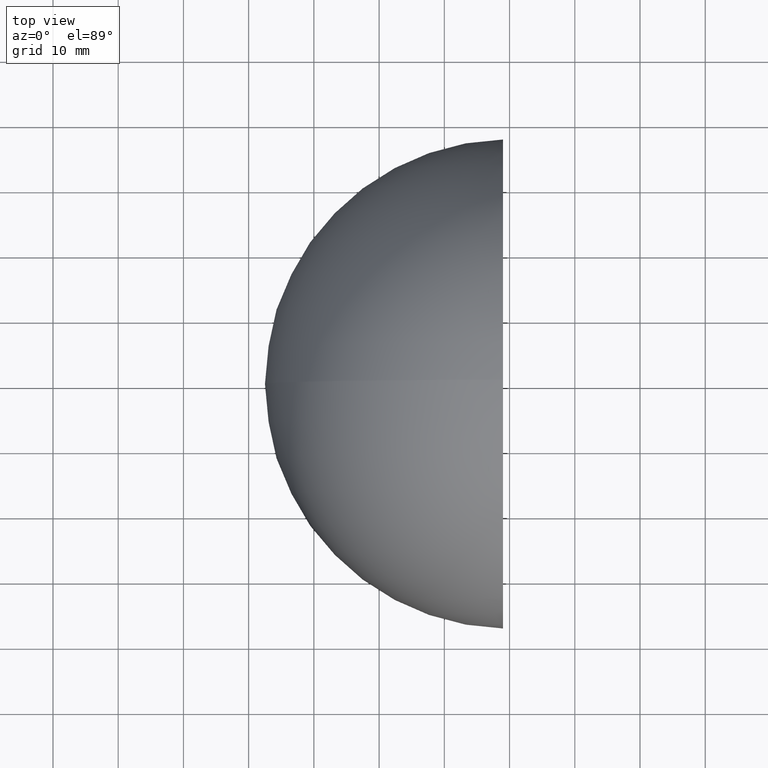
[diagram: clean part render]
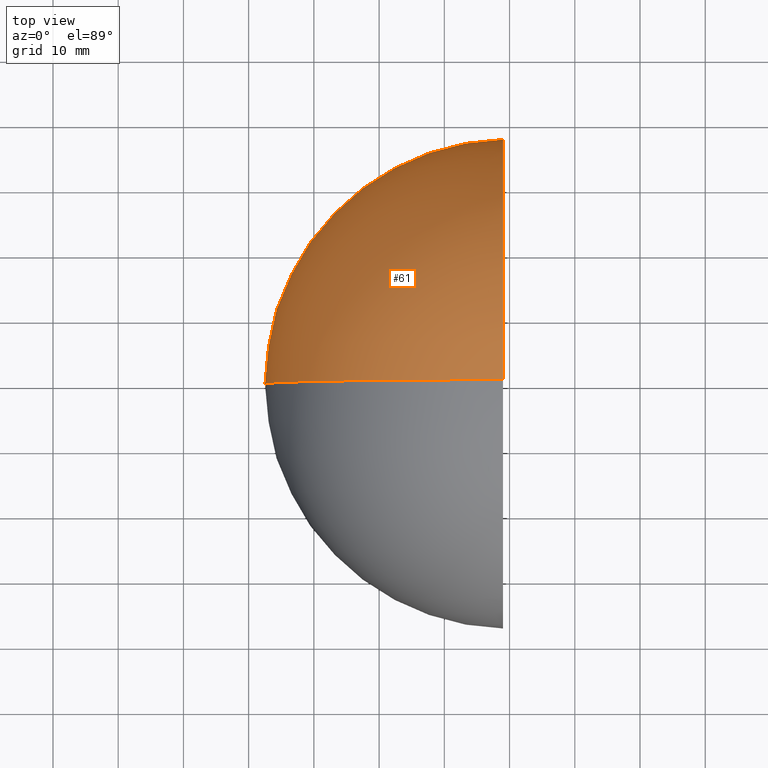
[diagram: same view with one face highlighted and labeled with its STEP entity id]
A machine part, top view. The second image highlights one B-rep face of the part: STEP entity #61.
In plain terms, the highlighted spherical surface has radius 37.5 mm.
Its self-contained STEP definition (entity closure, byte-faithful):
#3 = EDGE_LOOP ( 'NONE', ( #59, #113, #107 ) ) ;
#4 = AXIS2_PLACEMENT_3D ( 'NONE', #68, #30, #21 ) ;
#7 = CIRCLE ( 'NONE', #42, 37.48666429545312400 ) ;
#11 = EDGE_CURVE ( 'NONE', #94, #35, #33, .T. ) ;
#21 = DIRECTION ( 'NONE',  ( 0.0000000000000000000, -1.224646799147353200E-016, -1.000000000000000000 ) ) ;
#25 = CARTESIAN_POINT ( 'NONE',  ( -37.50000000000000000, 0.0000000000000000000, 2.296212748401287200E-015 ) ) ;
#28 = AXIS2_PLACEMENT_3D ( 'NONE', #46, #105, #160 ) ;
#30 = DIRECTION ( 'NONE',  ( 0.0000000000000000000, -1.000000000000000000, 1.224646799147353200E-016 ) ) ;
#33 = CIRCLE ( 'NONE', #43, 37.50000000000000000 ) ;
#35 = VERTEX_POINT ( 'NONE', #95 ) ;
#36 = EDGE_CURVE ( 'NONE', #94, #97, #142, .T. ) ;
#42 = AXIS2_PLACEMENT_3D ( 'NONE', #51, #53, #117 ) ;
#43 = AXIS2_PLACEMENT_3D ( 'NONE', #164, #79, #141 ) ;
#46 = CARTESIAN_POINT ( 'NONE',  ( 0.0000000000000000000, 0.0000000000000000000, 0.0000000000000000000 ) ) ;
#51 = CARTESIAN_POINT ( 'NONE',  ( -0.9999999999999940000, 0.0000000000000000000, 0.0000000000000000000 ) ) ;
#53 = DIRECTION ( 'NONE',  ( 1.000000000000000000, -0.0000000000000000000, -0.0000000000000000000 ) ) ;
#59 = ORIENTED_EDGE ( 'NONE', *, *, #36, .F. ) ;
#61 = ADVANCED_FACE ( 'NONE', ( #78 ), #112, .T. ) ;
#65 = EDGE_CURVE ( 'NONE', #97, #35, #7, .T. ) ;
#68 = CARTESIAN_POINT ( 'NONE',  ( 0.0000000000000000000, 0.0000000000000000000, 0.0000000000000000000 ) ) ;
#78 = FACE_OUTER_BOUND ( 'NONE', #3, .T. ) ;
#79 = DIRECTION ( 'NONE',  ( 0.0000000000000000000, 1.000000000000000000, 0.0000000000000000000 ) ) ;
#94 = VERTEX_POINT ( 'NONE', #25 ) ;
#95 = CARTESIAN_POINT ( 'NONE',  ( -0.9999999999999940000, 0.0000000000000000000, 37.48666429545312400 ) ) ;
#97 = VERTEX_POINT ( 'NONE', #150 ) ;
#105 = DIRECTION ( 'NONE',  ( 0.0000000000000000000, -1.000000000000000000, 0.0000000000000000000 ) ) ;
#107 = ORIENTED_EDGE ( 'NONE', *, *, #65, .F. ) ;
#112 = SPHERICAL_SURFACE ( 'NONE', #28, 37.50000000000000000 ) ;
#113 = ORIENTED_EDGE ( 'NONE', *, *, #11, .T. ) ;
#117 = DIRECTION ( 'NONE',  ( 0.0000000000000000000, 0.0000000000000000000, -1.000000000000000000 ) ) ;
#141 = DIRECTION ( 'NONE',  ( 0.0000000000000000000, 0.0000000000000000000, 1.000000000000000000 ) ) ;
#142 = CIRCLE ( 'NONE', #4, 37.50000000000000000 ) ;
#150 = CARTESIAN_POINT ( 'NONE',  ( -0.9999999999999940000, -4.590792344013803300E-015, -37.48666429545312400 ) ) ;
#160 = DIRECTION ( 'NONE',  ( 0.0000000000000000000, 0.0000000000000000000, 1.000000000000000000 ) ) ;
#164 = CARTESIAN_POINT ( 'NONE',  ( 0.0000000000000000000, 0.0000000000000000000, 0.0000000000000000000 ) ) ;